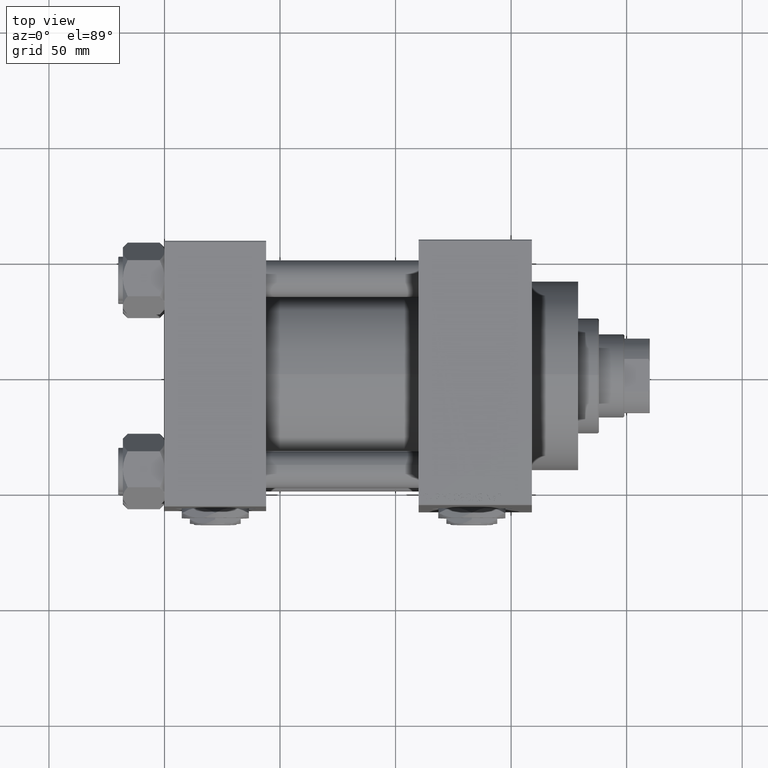
[diagram: clean part render]
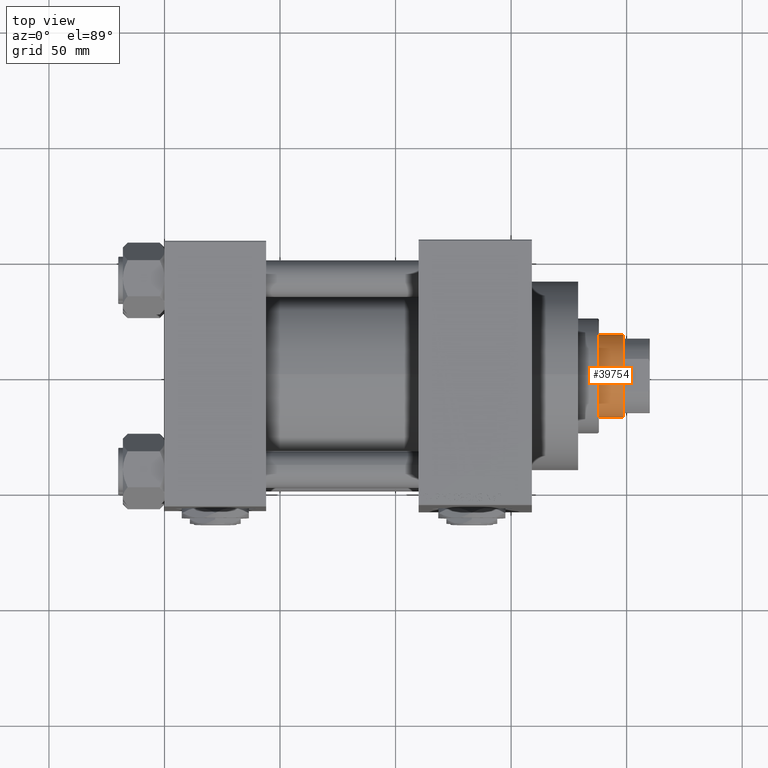
[diagram: same view with one face highlighted and labeled with its STEP entity id]
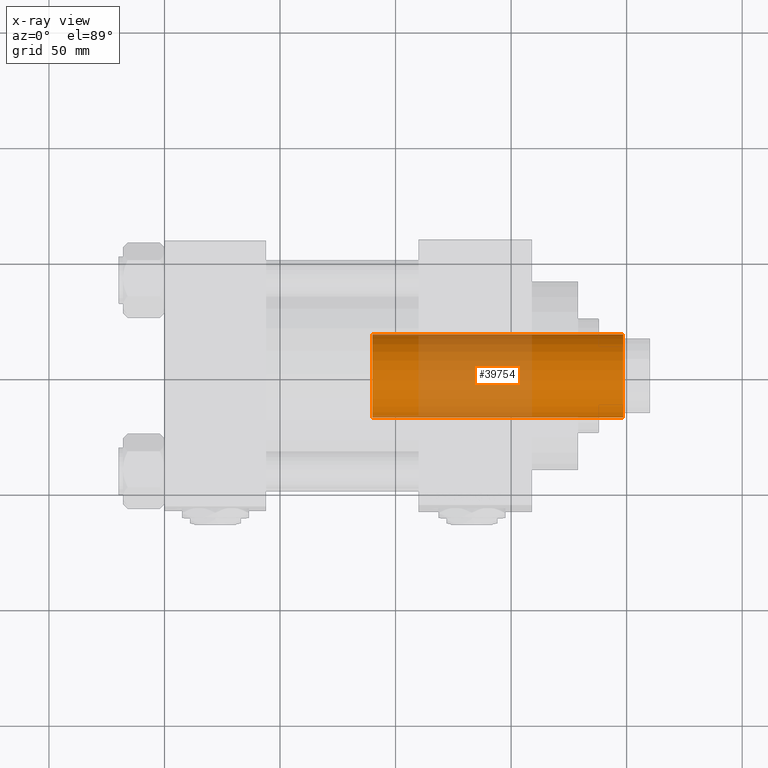
[diagram: x-ray of the same camera — body ghosted, the highlighted face saturated]
A machine part, top view. The second image highlights one B-rep face of the part: STEP entity #39754.
The next image is the same camera in x-ray: the body ghosted, the highlighted face saturated — about 47% of this face is hidden behind the body in this view.
In plain terms, the highlighted cylindrical surface (partial cylindrical patch) has radius 18 mm, axis along (-1, 0, 0).
Its self-contained STEP definition (entity closure, byte-faithful):
#1742 = AXIS2_PLACEMENT_3D ( 'NONE', #48770, #44482, #44741 ) ;
#2047 = CYLINDRICAL_SURFACE ( 'NONE', #43881, 18.00000000000000000 ) ;
#2622 = VERTEX_POINT ( 'NONE', #24937 ) ;
#3540 = EDGE_CURVE ( 'NONE', #34856, #24656, #38849, .T. ) ;
#6525 = EDGE_CURVE ( 'NONE', #2622, #34856, #8700, .T. ) ;
#6536 = ORIENTED_EDGE ( 'NONE', *, *, #22576, .T. ) ;
#7374 = DIRECTION ( 'NONE',  ( -0.000000000000000000, -0.000000000000000000, -1.000000000000000000 ) ) ;
#8574 = EDGE_CURVE ( 'NONE', #31875, #24656, #45872, .T. ) ;
#8700 = LINE ( 'NONE', #35401, #26088 ) ;
#10012 = VECTOR ( 'NONE', #7374, 1000.000000000000000 ) ;
#10306 = DIRECTION ( 'NONE',  ( 1.000000000000000000, 0.000000000000000000, 0.000000000000000000 ) ) ;
#13887 = FACE_OUTER_BOUND ( 'NONE', #31062, .T. ) ;
#15195 = CARTESIAN_POINT ( 'NONE',  ( 18.00000000000000000, 2.204364238465235428E-15, 154.4999999999999716 ) ) ;
#15698 = CARTESIAN_POINT ( 'NONE',  ( -18.00000000000000000, 0.000000000000000000, 46.00000000000000000 ) ) ;
#17153 = DIRECTION ( 'NONE',  ( -0.000000000000000000, -0.000000000000000000, -1.000000000000000000 ) ) ;
#22576 = EDGE_CURVE ( 'NONE', #31875, #2622, #27493, .T. ) ;
#22732 = CARTESIAN_POINT ( 'NONE',  ( 18.00000000000000000, 2.204364238465235428E-15, 155.0000000000000000 ) ) ;
#24553 = ORIENTED_EDGE ( 'NONE', *, *, #3540, .T. ) ;
#24656 = VERTEX_POINT ( 'NONE', #37888 ) ;
#24937 = CARTESIAN_POINT ( 'NONE',  ( -18.00000000000000000, 0.000000000000000000, 154.4999999999999716 ) ) ;
#24962 = CARTESIAN_POINT ( 'NONE',  ( 0.000000000000000000, 0.000000000000000000, 155.0000000000000000 ) ) ;
#26088 = VECTOR ( 'NONE', #28082, 1000.000000000000000 ) ;
#26164 = CARTESIAN_POINT ( 'NONE',  ( 0.000000000000000000, 0.000000000000000000, 46.00000000000000000 ) ) ;
#27493 = CIRCLE ( 'NONE', #1742, 18.00000000000000000 ) ;
#28082 = DIRECTION ( 'NONE',  ( -0.000000000000000000, -0.000000000000000000, -1.000000000000000000 ) ) ;
#29238 = DIRECTION ( 'NONE',  ( -1.000000000000000000, 0.000000000000000000, 0.000000000000000000 ) ) ;
#29828 = ORIENTED_EDGE ( 'NONE', *, *, #6525, .T. ) ;
#30792 = AXIS2_PLACEMENT_3D ( 'NONE', #26164, #49306, #10306 ) ;
#31062 = EDGE_LOOP ( 'NONE', ( #46641, #6536, #29828, #24553 ) ) ;
#31875 = VERTEX_POINT ( 'NONE', #15195 ) ;
#34856 = VERTEX_POINT ( 'NONE', #15698 ) ;
#35401 = CARTESIAN_POINT ( 'NONE',  ( -18.00000000000000000, 0.000000000000000000, 155.0000000000000000 ) ) ;
#37888 = CARTESIAN_POINT ( 'NONE',  ( 18.00000000000000000, 2.204364238465235428E-15, 46.00000000000000000 ) ) ;
#38849 = CIRCLE ( 'NONE', #30792, 18.00000000000000000 ) ;
#39754 = ADVANCED_FACE ( 'NONE', ( #13887 ), #2047, .T. ) ;
#43881 = AXIS2_PLACEMENT_3D ( 'NONE', #24962, #17153, #29238 ) ;
#44482 = DIRECTION ( 'NONE',  ( 0.000000000000000000, 0.000000000000000000, -1.000000000000000000 ) ) ;
#44741 = DIRECTION ( 'NONE',  ( 1.000000000000000000, 0.000000000000000000, 0.000000000000000000 ) ) ;
#45872 = LINE ( 'NONE', #22732, #10012 ) ;
#46641 = ORIENTED_EDGE ( 'NONE', *, *, #8574, .F. ) ;
#48770 = CARTESIAN_POINT ( 'NONE',  ( 0.000000000000000000, 0.000000000000000000, 154.4999999999999716 ) ) ;
#49306 = DIRECTION ( 'NONE',  ( 0.000000000000000000, 0.000000000000000000, 1.000000000000000000 ) ) ;